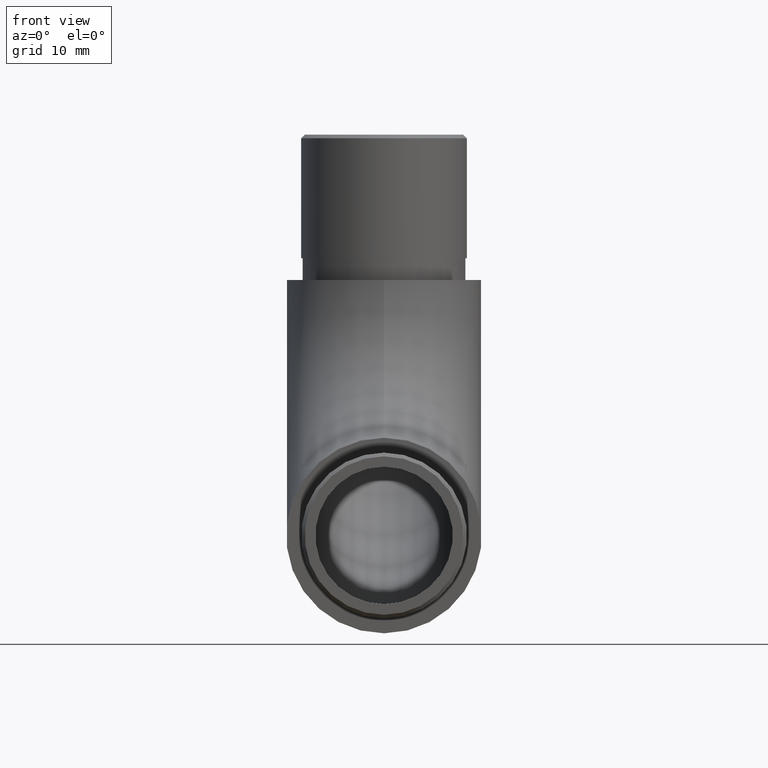
[diagram: clean part render]
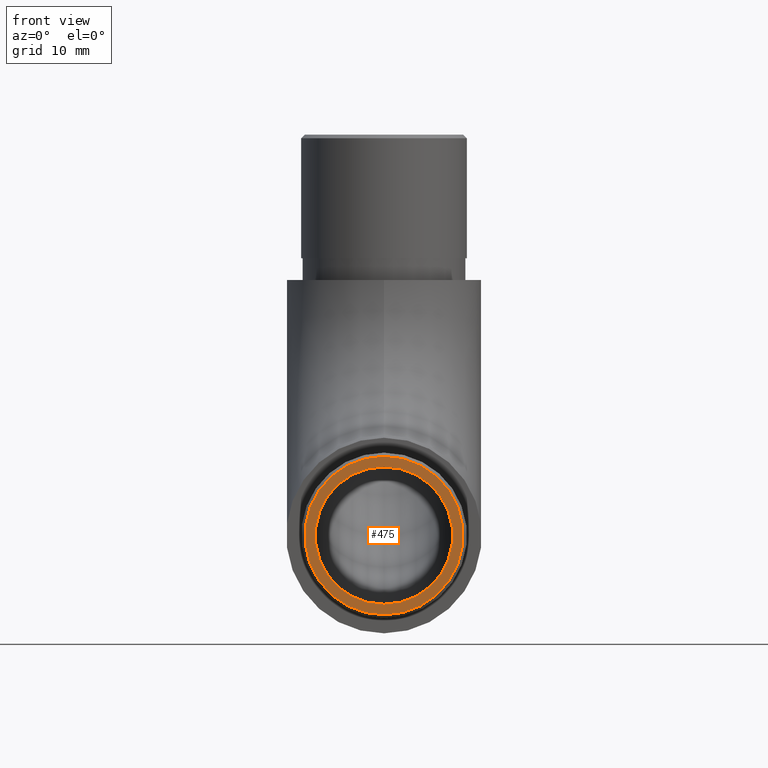
[diagram: same view with one face highlighted and labeled with its STEP entity id]
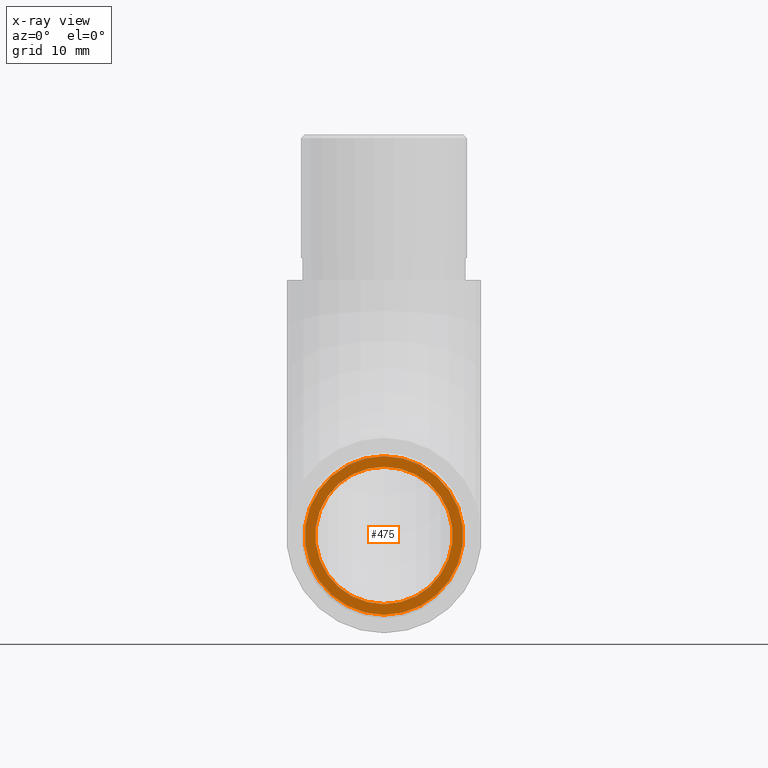
[diagram: x-ray of the same camera — body ghosted, the highlighted face saturated]
A machine part, front view. The second image highlights one B-rep face of the part: STEP entity #475.
The next image is the same camera in x-ray: the body ghosted, the highlighted face saturated — about 0% of this face is hidden behind the body in this view.
In plain terms, the highlighted planar face has unit normal (0, -1, 0).
Its self-contained STEP definition (entity closure, byte-faithful):
#450 = EDGE_CURVE ( 'NONE', #7666, #7666, #2865, .T. ) ;
#475 = ADVANCED_FACE ( 'NONE', ( #6682, #5842 ), #8847, .T. ) ;
#651 = AXIS2_PLACEMENT_3D ( 'NONE', #6897, #9640, #3352 ) ;
#1731 = CARTESIAN_POINT ( 'NONE',  ( 0.0000000000000000000, -20.00000000000000000, 13.44999999999999800 ) ) ;
#2348 = EDGE_LOOP ( 'NONE', ( #6169 ) ) ;
#2587 = AXIS2_PLACEMENT_3D ( 'NONE', #9778, #10635, #10723 ) ;
#2645 = DIRECTION ( 'NONE',  ( 0.0000000000000000000, -0.0000000000000000000, -1.000000000000000000 ) ) ;
#2757 = CARTESIAN_POINT ( 'NONE',  ( 0.0000000000000000000, -20.00000000000000000, 2.549999999999989600 ) ) ;
#2865 = CIRCLE ( 'NONE', #651, 9.449999999999999300 ) ;
#3352 = DIRECTION ( 'NONE',  ( 0.0000000000000000000, 0.0000000000000000000, -1.000000000000000000 ) ) ;
#4360 = DIRECTION ( 'NONE',  ( 0.0000000000000000000, -1.000000000000000000, 0.0000000000000000000 ) ) ;
#5842 = FACE_BOUND ( 'NONE', #2348, .T. ) ;
#5888 = CIRCLE ( 'NONE', #2587, 10.90000000000000700 ) ;
#6169 = ORIENTED_EDGE ( 'NONE', *, *, #450, .F. ) ;
#6682 = FACE_OUTER_BOUND ( 'NONE', #11625, .T. ) ;
#6725 = ORIENTED_EDGE ( 'NONE', *, *, #6802, .T. ) ;
#6802 = EDGE_CURVE ( 'NONE', #7086, #7086, #5888, .T. ) ;
#6897 = CARTESIAN_POINT ( 'NONE',  ( 0.0000000000000000000, -20.00000000000000000, 13.44999999999999800 ) ) ;
#7086 = VERTEX_POINT ( 'NONE', #2757 ) ;
#7378 = CARTESIAN_POINT ( 'NONE',  ( 0.0000000000000000000, -20.00000000000000000, 3.999999999999996400 ) ) ;
#7666 = VERTEX_POINT ( 'NONE', #7378 ) ;
#8847 = PLANE ( 'NONE',  #9344 ) ;
#9344 = AXIS2_PLACEMENT_3D ( 'NONE', #1731, #4360, #2645 ) ;
#9640 = DIRECTION ( 'NONE',  ( 0.0000000000000000000, -1.000000000000000000, 0.0000000000000000000 ) ) ;
#9778 = CARTESIAN_POINT ( 'NONE',  ( 0.0000000000000000000, -20.00000000000000000, 13.44999999999999800 ) ) ;
#10635 = DIRECTION ( 'NONE',  ( 0.0000000000000000000, -1.000000000000000000, 0.0000000000000000000 ) ) ;
#10723 = DIRECTION ( 'NONE',  ( 0.0000000000000000000, 0.0000000000000000000, -1.000000000000000000 ) ) ;
#11625 = EDGE_LOOP ( 'NONE', ( #6725 ) ) ;